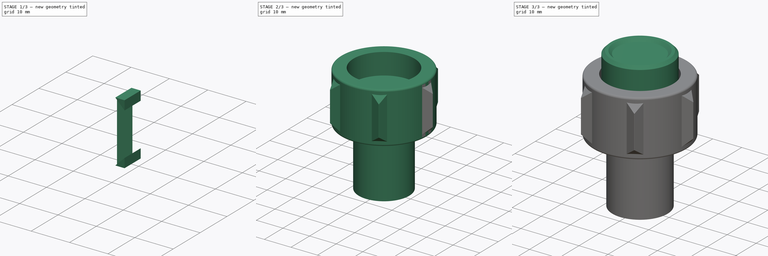
[diagram: build sequence overview — one tinted view per stage of 3, left to right]
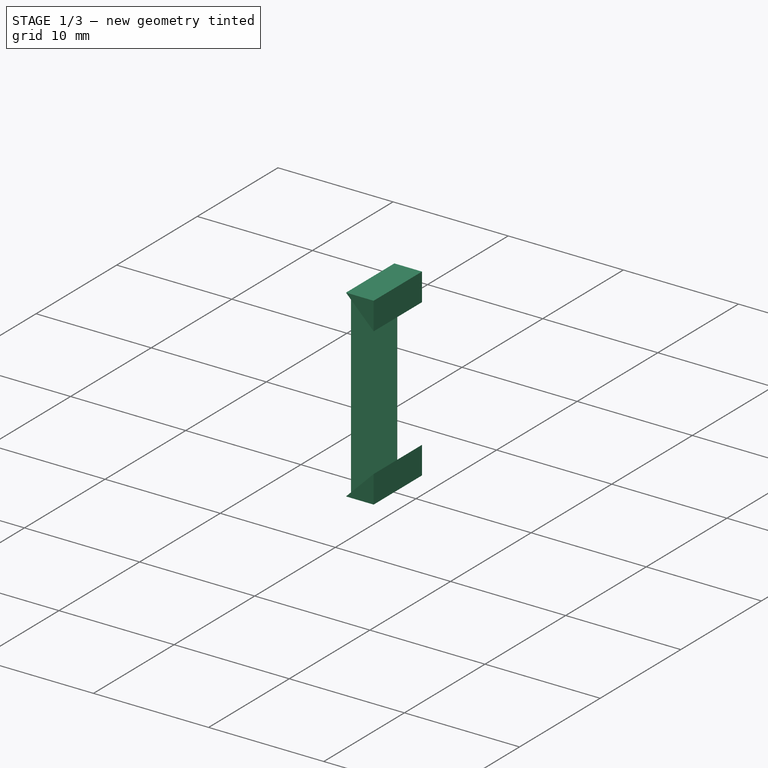
[diagram: stage 1 of 3 — iso view after this stage's code; geometry added in this stage tinted green]
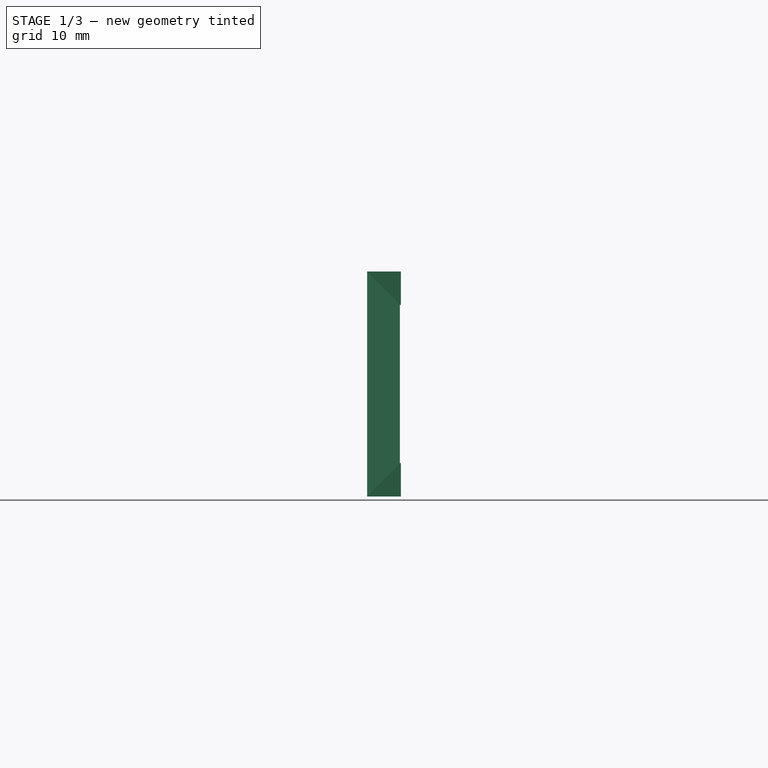
[diagram: stage 1 of 3 — front view after this stage's code; geometry added in this stage tinted green]
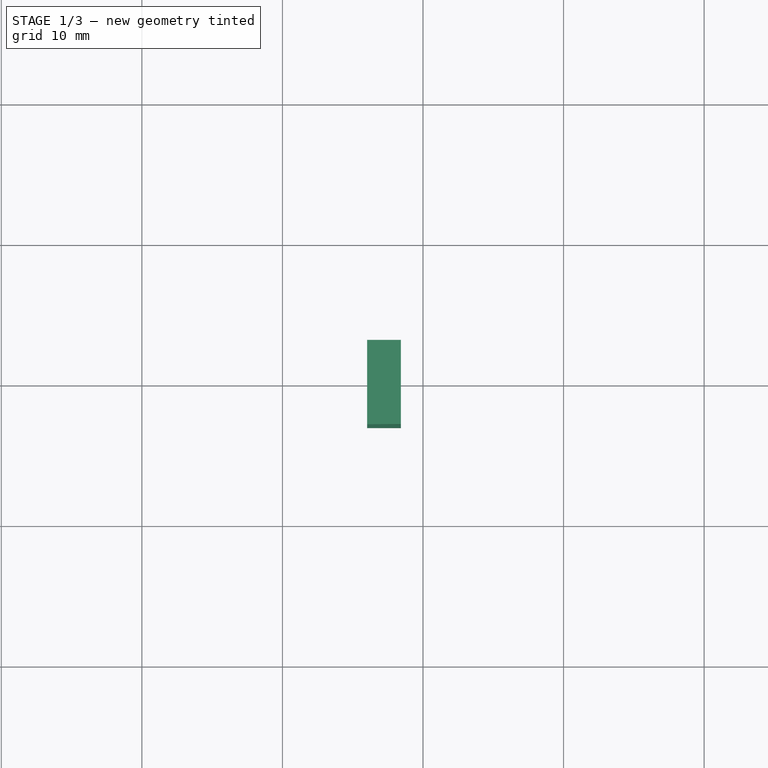
[diagram: stage 1 of 3 — top view after this stage's code; geometry added in this stage tinted green]
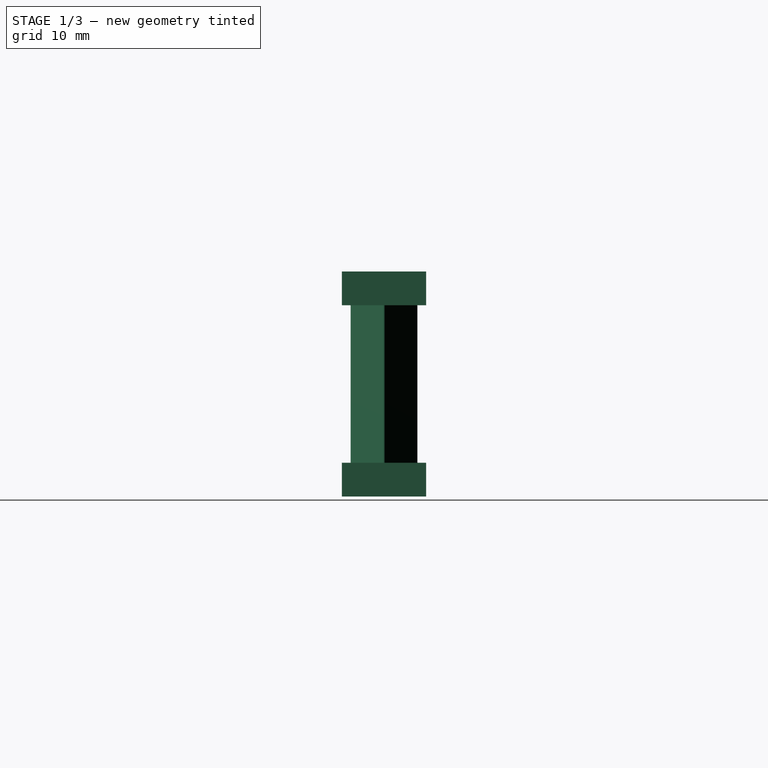
[diagram: stage 1 of 3 — right view after this stage's code; geometry added in this stage tinted green]
FCSTD DOCUMENT  (FreeCAD 0.16R6706 (Git))
Label: mixture_knob
License: All rights reserved
LicenseURL: http://en.wikipedia.org/wiki/All_rights_reserved
objects: Sketcher::SketchObject×4, PartDesign::Revolution×2, PartDesign::Pad×2, Part::Cut×1, Part::FeaturePython×1, Part::MultiFuse×1
note: 15 computed .brp shape members not serialized (recipe doc carries the construction recipe); baked Part::Feature solids carry a one-line shape summary decoded from their .brp

FEATURE [Sketcher::SketchObject] Sketch002  label="Sketch (grip)"
  Placement = pos=(0,0,23.4) rot=(0,0,1;0rad)
  sketch-geometry (5):
    g0: LineSegment StartX=16.025 StartY=2.375 StartZ=0 EndX=18.3293 EndY=0.0707102 EndZ=0
    g1: LineSegment StartX=18.3293 StartY=-0.0707102 StartZ=0 EndX=16.025 EndY=-2.375 EndZ=0
    g2: LineSegment StartX=16.025 StartY=2.375 StartZ=0 EndX=16.025 EndY=-2.375 EndZ=0
    g3: ArcOfCircle CenterX=18.2585 CenterY=0 CenterZ=0 NormalX=0 NormalY=0 NormalZ=1 Radius=0.1 StartAngle=5.49779 EndAngle=7.06858
    g4: LineSegment [constr] StartX=18.3293 StartY=0.0707102 StartZ=0 EndX=18.3293 EndY=-0.0707102 EndZ=0
  constraints (15):
    c: Coincident(g2,g0)
    c: Coincident(g2,g1)
    c: Vertical(g2)
    c: Symmetric(g0,g1,g-1)
    c: Perpendicular(g1,g0)
    c: DistanceY(g2,g2) = 4.75
    c: Distance(g-1,g0) = 16.2
    c: PointOnObject(g3,g-1)
    c: Coincident(g3,g0)
    c: Coincident(g3,g1)
    c: Tangent(g3,g0)
    c: Radius(g3) = 0.1
    c: Coincident(g4,g0)
    c: Coincident(g4,g1)
    c: Vertical(g4)
FEATURE [PartDesign::Pad] Pad  label="Pad (grip)"
  Length = 16
  Length2 = 100
  Placement = pos=(0,0,23.4) rot=(0,0,1;0rad)
  Sketch = -> Sketch002
  Type = 0
FEATURE [Sketcher::SketchObject] Sketch003  label="Sketch (grip draft)"
  Placement = pos=(0,0,0) rot=(-1,0,0;4.71239rad)
  sketch-geometry (7):
    g0: LineSegment StartX=16.025 StartY=39.4 StartZ=0 EndX=18.425 EndY=37 EndZ=0
    g1: LineSegment StartX=16.025 StartY=39.4 StartZ=0 EndX=18.425 EndY=39.4 EndZ=0
    g2: LineSegment StartX=18.425 StartY=39.4 StartZ=0 EndX=18.425 EndY=37 EndZ=0
    g3: LineSegment StartX=16.025 StartY=23.4 StartZ=0 EndX=18.425 EndY=25.8 EndZ=0
    g4: LineSegment StartX=18.425 StartY=25.8 StartZ=0 EndX=18.425 EndY=23.4 EndZ=0
    g5: LineSegment StartX=18.425 StartY=23.4 StartZ=0 EndX=16.025 EndY=23.4 EndZ=0
    g6: LineSegment [constr] StartX=18.425 StartY=37 StartZ=0 EndX=18.425 EndY=25.8 EndZ=0
  constraints (20):
    c: Coincident(g1,g0)
    c: Horizontal(g1)
    c: Coincident(g2,g1)
    c: Coincident(g2,g0)
    c: Vertical(g2)
    c: Coincident(g4,g3)
    c: Coincident(g5,g4)
    c: Coincident(g5,g3)
    c: Horizontal(g5)
    c: Vertical(g4)
    c: Equal(g1,g2)
    c: Equal(g2,g4)
    c: Equal(g4,g5)
    c: Coincident(g6,g0)
    c: Coincident(g6,g3)
    c: Vertical(g6)
    c: DistanceY(g-1,g4) = 23.4
    c: DistanceX(g-1,g3) = 16.025
    c: DistanceY(g4,g1) = 16
    c: DistanceX(g1,g1) = 2.4
FEATURE [PartDesign::Pad] Pad001  label="Pad (grip draft)"
  Length = 3
  Length2 = 3
  Placement = pos=(0,0,0) rot=(-1,0,0;4.71239rad)
  Sketch = -> Sketch003
  Type = 4
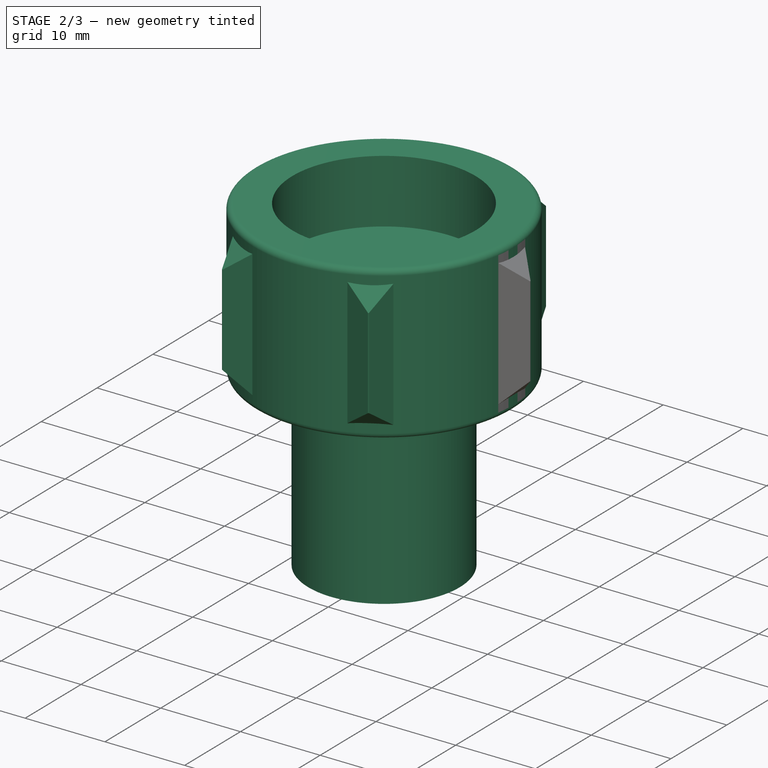
[diagram: stage 2 of 3 — iso view after this stage's code; geometry added in this stage tinted green]
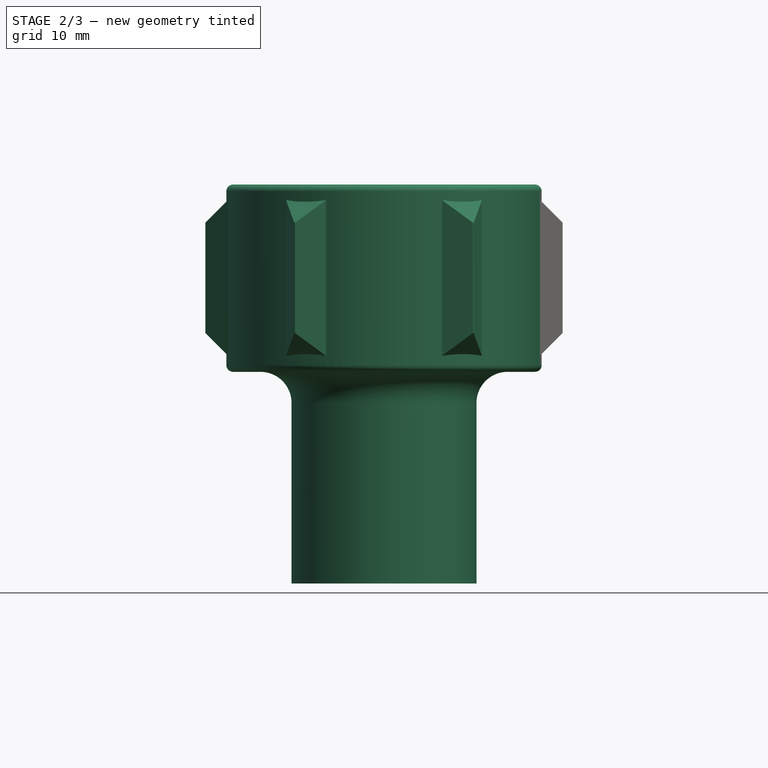
[diagram: stage 2 of 3 — front view after this stage's code; geometry added in this stage tinted green]
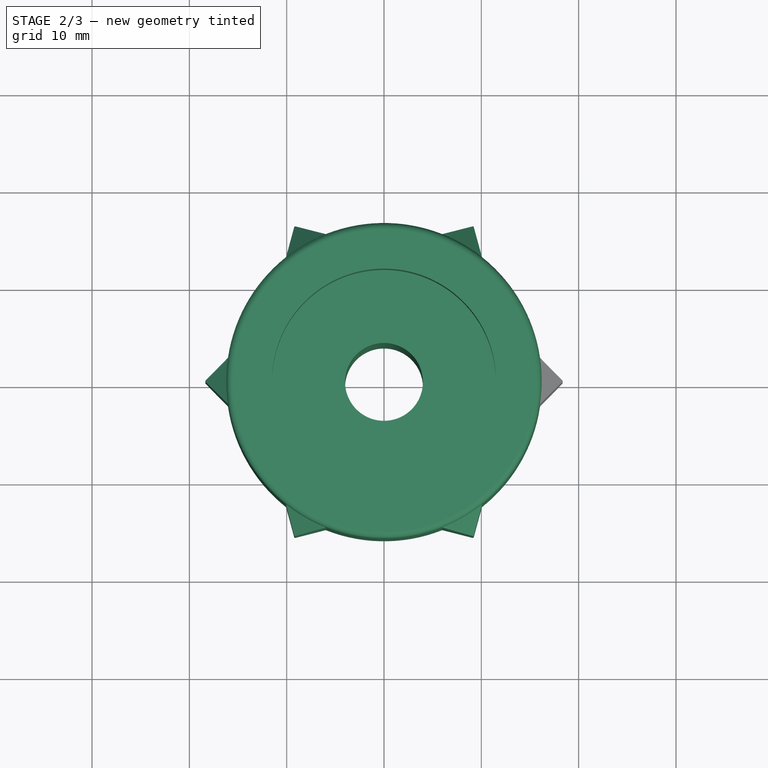
[diagram: stage 2 of 3 — top view after this stage's code; geometry added in this stage tinted green]
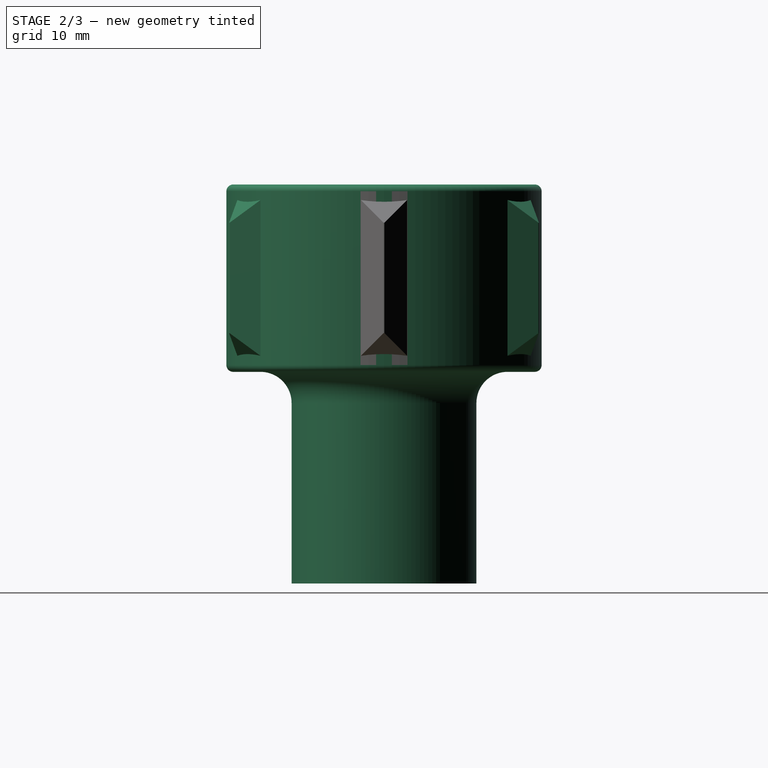
[diagram: stage 2 of 3 — right view after this stage's code; geometry added in this stage tinted green]
FEATURE [Sketcher::SketchObject] Sketch  label="Sketch (outer)"
  Placement = pos=(0,0,0) rot=(-1,0,0;4.71239rad)
  expr: Constraints[28] = 23 / 2
  expr: Constraints[26] = 32.4 / 2
  expr: Constraints[11] = 19 / 2
  sketch-geometry (11):
    g0: LineSegment StartX=9.5 StartY=0 StartZ=0 EndX=9.5 EndY=18.55 EndZ=0
    g1: LineSegment StartX=12.7 StartY=21.75 StartZ=0 EndX=15.5 EndY=21.75 EndZ=0
    g2: LineSegment StartX=11.5 StartY=41 StartZ=0 EndX=11.5 EndY=33 EndZ=0
    g3: LineSegment StartX=11.5 StartY=33 StartZ=0 EndX=4 EndY=33 EndZ=0
    g4: LineSegment StartX=4 StartY=33 StartZ=0 EndX=4 EndY=0 EndZ=0
    g5: LineSegment StartX=4 StartY=0 StartZ=0 EndX=9.5 EndY=0 EndZ=0
    g6: ArcOfCircle CenterX=12.7 CenterY=18.55 CenterZ=0 NormalX=0 NormalY=0 NormalZ=1 Radius=3.2 StartAngle=1.5708 EndAngle=3.14159
    g7: ArcOfCircle CenterX=15.5 CenterY=22.45 CenterZ=0 NormalX=0 NormalY=0 NormalZ=1 Radius=0.7 StartAngle=4.71239 EndAngle=6.28319
    g8: LineSegment StartX=16.2 StartY=22.45 StartZ=0 EndX=16.2 EndY=40.3 EndZ=0
    g9: LineSegment StartX=11.5 StartY=41 StartZ=0 EndX=15.5 EndY=41 EndZ=0
    g10: ArcOfCircle CenterX=15.5 CenterY=40.3 CenterZ=0 NormalX=0 NormalY=0 NormalZ=1 Radius=0.7 StartAngle=0 EndAngle=1.5708
  constraints (31):
    c: Vertical(g0)
    c: Horizontal(g1)
    c: Vertical(g2)
    c: Coincident(g3,g2)
    c: Horizontal(g3)
    c: Coincident(g4,g3)
    c: Vertical(g4)
    c: Coincident(g5,g4)
    c: Coincident(g5,g0)
    c: Horizontal(g5)
    c: PointOnObject(g4,g-1)
    c: DistanceX(g-1,g0) = 9.5
    c: Tangent(g0,g6) = 1.5708
    c: Tangent(g1,g6) = 1.5708
    c: Radius(g6) = 3.2
    c: DistanceY(g0,g1) = 21.75
    c: Tangent(g1,g7) = -1.5708
    c: Coincident(g8,g7)
    c: Vertical(g8)
    c: Coincident(g9,g2)
    c: Horizontal(g9)
    c: Tangent(g9,g10) = 1.5708
    c: Tangent(g8,g10) = -1.5708
    c: Equal(g10,g7)
    c: Tangent(g8,g7)
    c: Radius(g7) = 0.7
    c: DistanceX(g-1,g7) = 16.2
    c: DistanceY(g-1,g9) = 41
    c: DistanceX(g-1,g2) = 11.5
    c: DistanceX(g-1,g4) = 4
    c: DistanceY(g2,g2) = 8
FEATURE [PartDesign::Revolution] Revolution  label="Revolution (outer)"
  Angle = 360
  Axis = (0,0,1)
  Base = (0,0,0)
  Placement = pos=(0,0,0) rot=(-1,0,0;4.71239rad)
  ReferenceAxis = -> Sketch [V_Axis]
  Reversed = true
  Sketch = -> Sketch
FEATURE [Part::Cut] Cut  label="Cut (grip)"
  Base = -> Pad
  Tool = -> Pad001
FEATURE [Part::FeaturePython] Array  label="Array (grip)"  # Draft array (typed FeaturePython)
  Angle = 360
  ArrayType = 1
  Axis = (0,0,1)
  Base = -> Cut
  Center = (0,0,0)
  Fuse = false
  IntervalAxis = (0,0,0)
  IntervalX = (1,0,0)
  IntervalY = (0,1,0)
  IntervalZ = (0,0,0)
  NumberPolar = 6
  NumberX = 2
  NumberY = 2
  NumberZ = 1
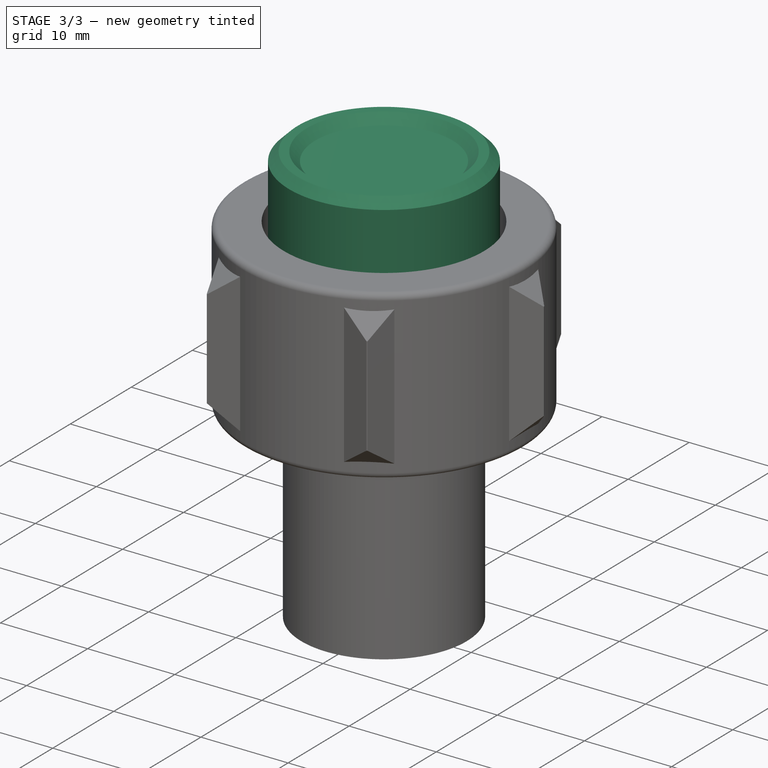
[diagram: stage 3 of 3 — iso view after this stage's code; geometry added in this stage tinted green]
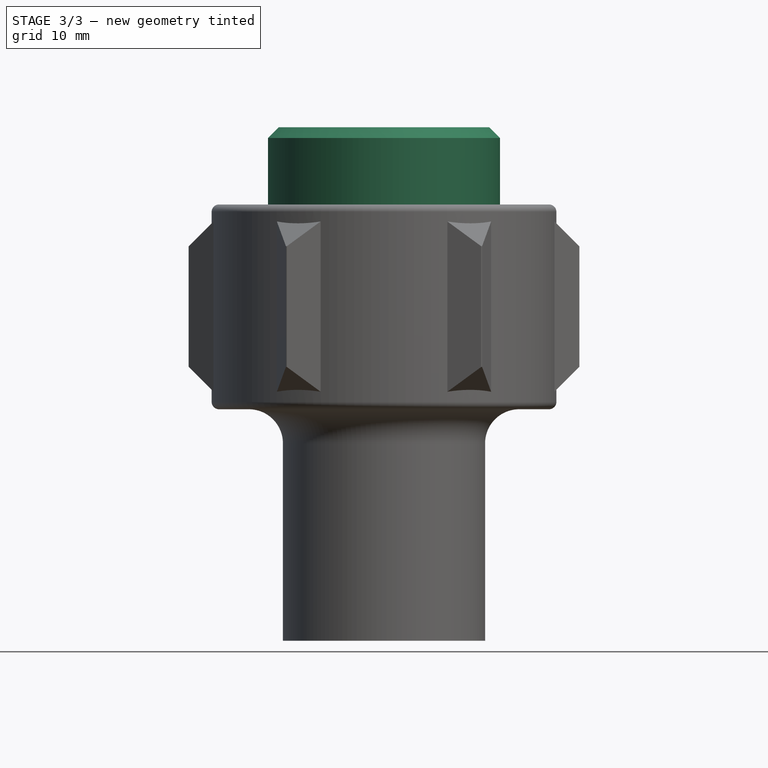
[diagram: stage 3 of 3 — front view after this stage's code; geometry added in this stage tinted green]
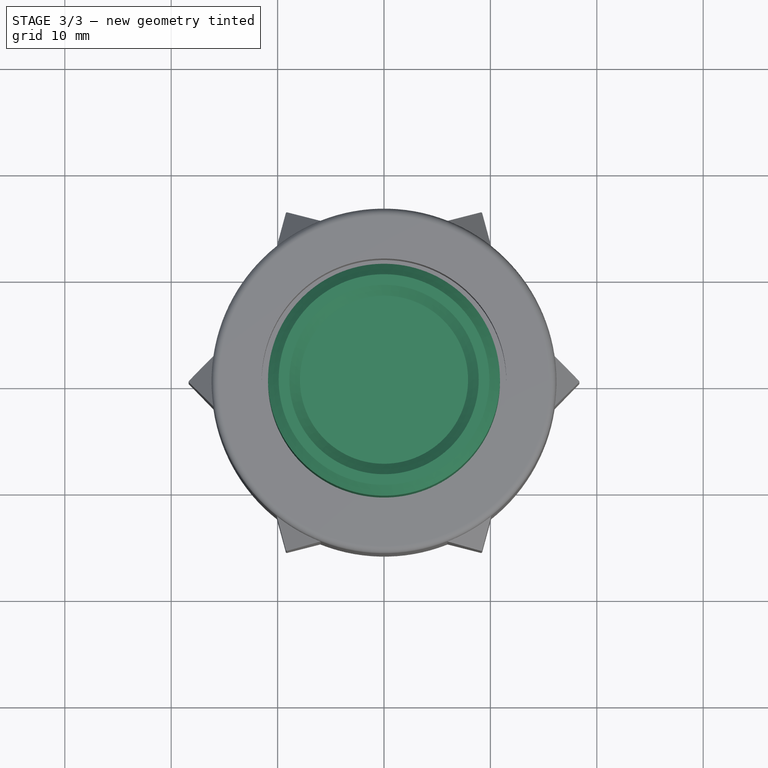
[diagram: stage 3 of 3 — top view after this stage's code; geometry added in this stage tinted green]
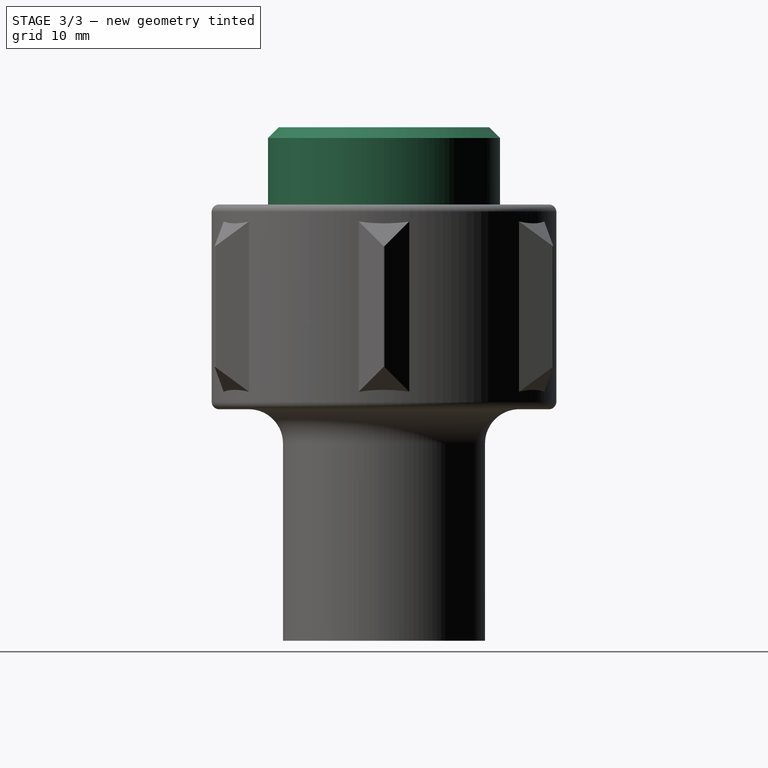
[diagram: stage 3 of 3 — right view after this stage's code; geometry added in this stage tinted green]
FEATURE [Sketcher::SketchObject] Sketch001  label="Sketch (button)"
  Placement = pos=(0,0,0) rot=(-1,0,0;4.71239rad)
  expr: Constraints[8] = 21.8 / 2
  sketch-geometry (9):
    g0: LineSegment StartX=0 StartY=47.25 StartZ=0 EndX=0 EndY=39 EndZ=0
    g1: LineSegment StartX=0 StartY=39 StartZ=0 EndX=4 EndY=39 EndZ=0
    g2: LineSegment StartX=4 StartY=39 StartZ=0 EndX=4 EndY=37 EndZ=0
    g3: LineSegment StartX=4 StartY=37 StartZ=0 EndX=10.9 EndY=37 EndZ=0
    g4: LineSegment StartX=0 StartY=47.25 StartZ=0 EndX=7.9 EndY=47.25 EndZ=0
    g5: LineSegment StartX=7.9 StartY=47.25 StartZ=0 EndX=8.9 EndY=48.25 EndZ=0
    g6: LineSegment StartX=8.9 StartY=48.25 StartZ=0 EndX=9.9 EndY=48.25 EndZ=0
    g7: LineSegment StartX=9.9 StartY=48.25 StartZ=0 EndX=10.9 EndY=47.25 EndZ=0
    g8: LineSegment StartX=10.9 StartY=37 StartZ=0 EndX=10.9 EndY=47.25 EndZ=0
  constraints (27):
    c: Coincident(g1,g0)
    c: Coincident(g2,g1)
    c: Vertical(g2)
    c: Coincident(g3,g2)
    c: Horizontal(g3)
    c: DistanceY(g-1,g2) = 37
    c: Vertical(g0)
    c: Horizontal(g1)
    c: DistanceX(g-1,g3) = 10.9
    c: PointOnObject(g0,g-2)
    c: DistanceX(g1,g1) = 4
    c: DistanceY(g2,g2) = 2
    c: Coincident(g4,g0)
    c: Horizontal(g4)
    c: Coincident(g5,g4)
    c: Coincident(g6,g5)
    c: Horizontal(g6)
    c: Coincident(g7,g6)
    c: Coincident(g8,g3)
    c: Coincident(g8,g7)
    c: Vertical(g8)
    c: Angle(g7) = -0.785398
    c: Angle(g5) = 0.785398
    c: Equal(g5,g7)
    c: DistanceX(g6,g6) = 1
    c: DistanceY(g-1,g6) = 48.25
    c: DistanceY(g7,g6) = 1
FEATURE [PartDesign::Revolution] Revolution001  label="Revolution (button)"
  Angle = 360
  Axis = (0,0,1)
  Base = (0,0,0)
  Placement = pos=(0,0,0) rot=(-1,0,0;4.71239rad)
  ReferenceAxis = -> Sketch001 [V_Axis]
  Reversed = true
  Sketch = -> Sketch001
FEATURE [Part::MultiFuse] Fusion  label="Fusion (knob)"
  Shapes = -> [Array,Revolution]
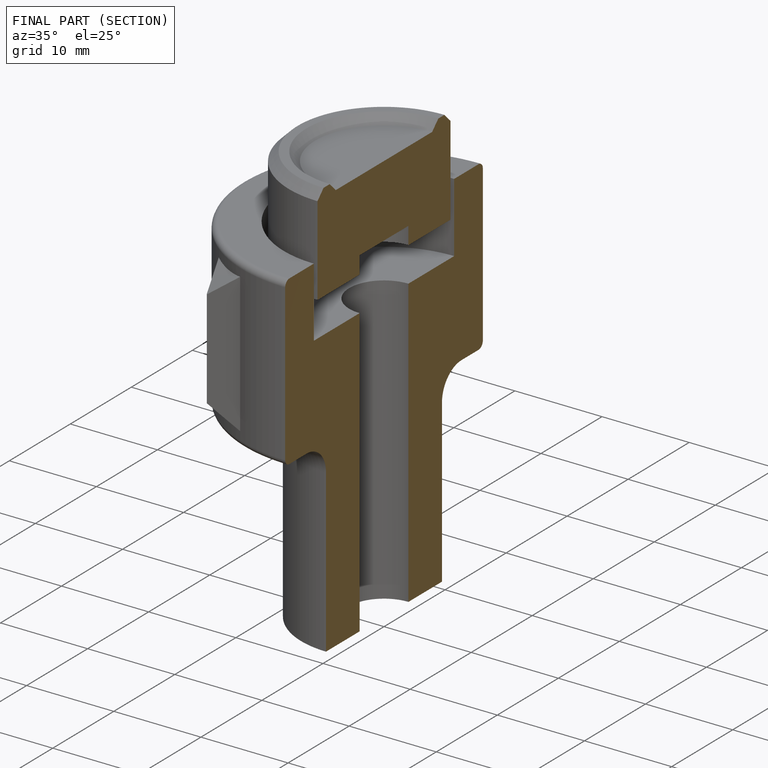
[diagram: finished part — half-section view (interior)]
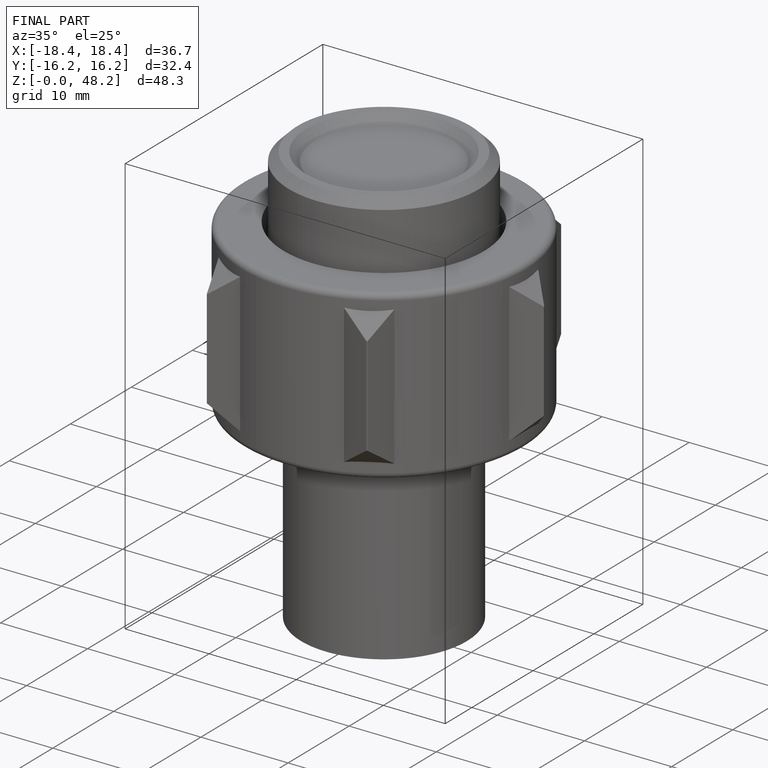
[diagram: finished part — iso view with bounding-box wireframe]
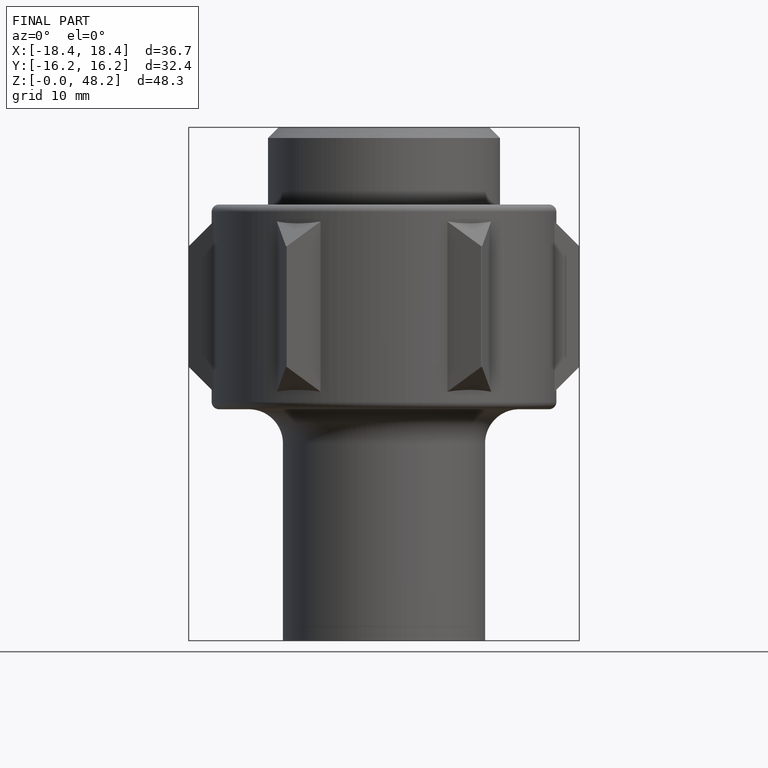
[diagram: finished part — front view with bounding-box wireframe]
